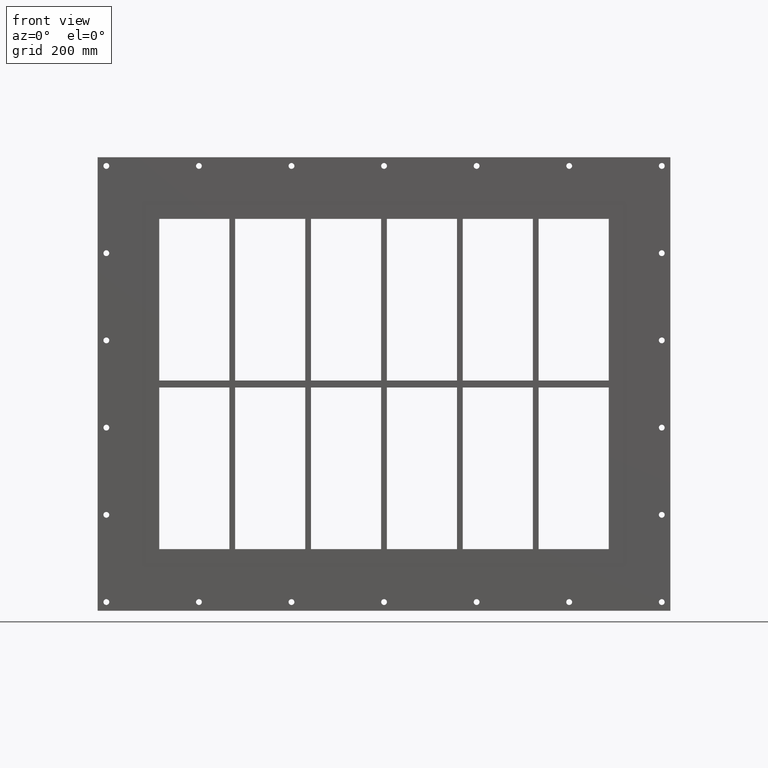
[diagram: clean part render]
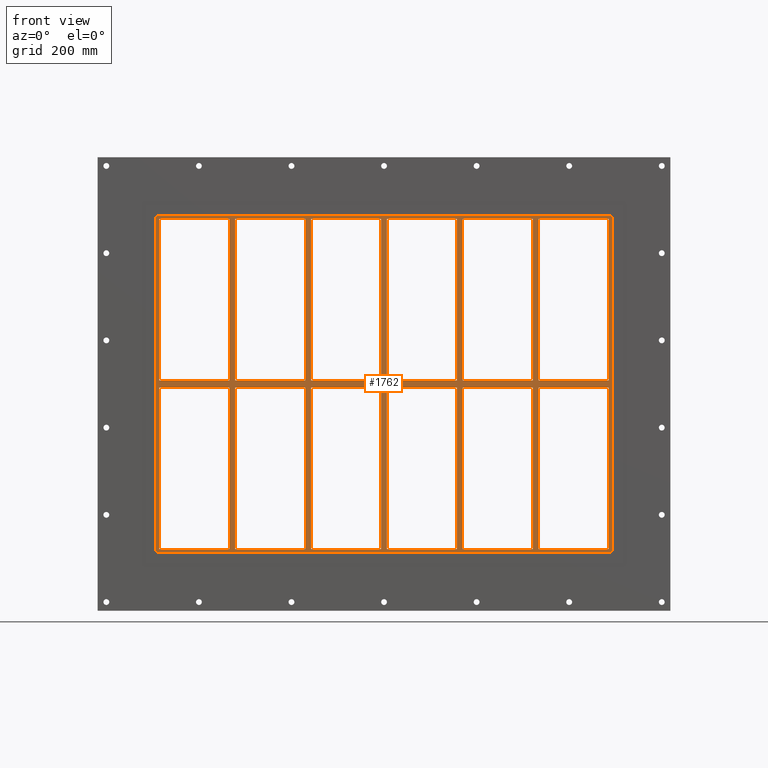
[diagram: same view with one face highlighted and labeled with its STEP entity id]
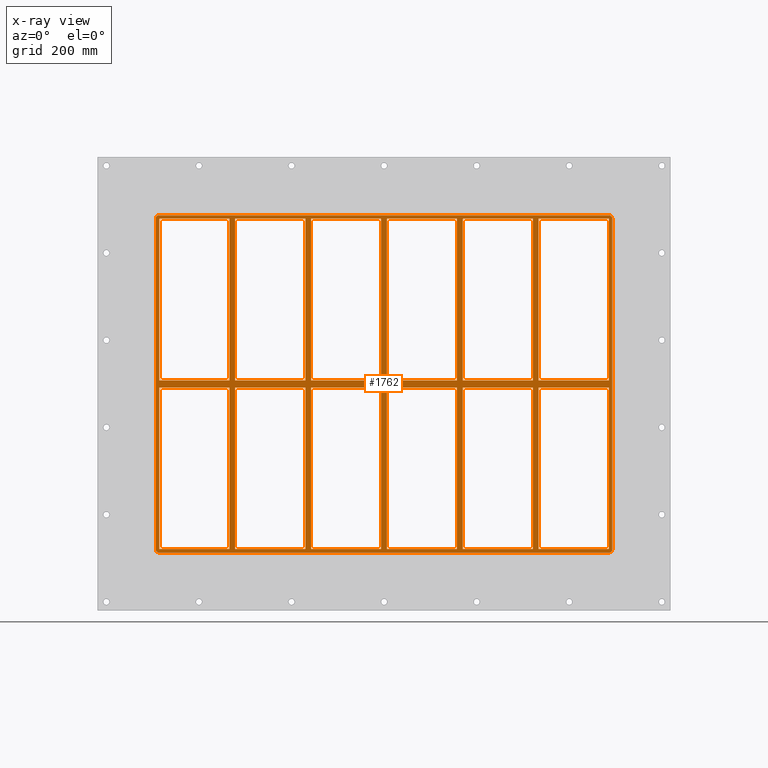
[diagram: x-ray of the same camera — body ghosted, the highlighted face saturated]
A machine part, front view. The second image highlights one B-rep face of the part: STEP entity #1762.
The next image is the same camera in x-ray: the body ghosted, the highlighted face saturated — about 0% of this face is hidden behind the body in this view.
In plain terms, the highlighted planar face has unit normal (0, 1, 0).
Its self-contained STEP definition (entity closure, byte-faithful):
#689=CARTESIAN_POINT('',(255.99999999999866,-3.0,5.999999999999943));
#690=VERTEX_POINT('',#689);
#699=CARTESIAN_POINT('',(255.99999999999864,-3.0,284.00000000000006));
#700=VERTEX_POINT('',#699);
#701=CARTESIAN_POINT('',(255.99999999999866,-3.0,5.999999999999943));
#702=DIRECTION('',(0.0,0.0,1.0));
#703=VECTOR('',#702,278.00000000000011);
#704=LINE('',#701,#703);
#705=EDGE_CURVE('',#690,#700,#704,.T.);
#731=CARTESIAN_POINT('',(255.99999999999866,-3.0,-6.000000000009358));
#732=VERTEX_POINT('',#731);
#747=CARTESIAN_POINT('',(255.99999999999869,-3.0,-284.00000000000006));
#748=VERTEX_POINT('',#747);
#755=CARTESIAN_POINT('',(255.99999999999869,-3.0,-284.00000000000006));
#756=DIRECTION('',(0.0,0.0,1.0));
#757=VECTOR('',#756,277.99999999999068);
#758=LINE('',#755,#757);
#759=EDGE_CURVE('',#748,#732,#758,.T.);
#771=CARTESIAN_POINT('',(265.99999999999642,-3.0,5.999999999999943));
#772=VERTEX_POINT('',#771);
#787=CARTESIAN_POINT('',(265.99999999999642,-3.0,284.00000000000006));
#788=VERTEX_POINT('',#787);
#795=CARTESIAN_POINT('',(265.99999999999642,-3.0,284.00000000000006));
#796=DIRECTION('',(0.0,0.0,-1.0));
#797=VECTOR('',#796,278.00000000000011);
#798=LINE('',#795,#797);
#799=EDGE_CURVE('',#788,#772,#798,.T.);
#809=CARTESIAN_POINT('',(265.99999999999642,-3.0,-6.000000000009358));
#810=VERTEX_POINT('',#809);
#819=CARTESIAN_POINT('',(265.99999999999642,-3.0,-283.99999999998431));
#820=VERTEX_POINT('',#819);
#821=CARTESIAN_POINT('',(265.99999999999642,-3.0,-6.000000000009379));
#822=DIRECTION('',(0.0,0.0,-1.0));
#823=VECTOR('',#822,277.99999999997488);
#824=LINE('',#821,#823);
#825=EDGE_CURVE('',#810,#820,#824,.T.);
#849=CARTESIAN_POINT('',(125.49999999999866,-3.0,5.999999999999943));
#850=VERTEX_POINT('',#849);
#859=CARTESIAN_POINT('',(125.49999999999862,-3.0,284.00000000000006));
#860=VERTEX_POINT('',#859);
#861=CARTESIAN_POINT('',(125.49999999999865,-3.0,5.999999999999943));
#862=DIRECTION('',(0.0,0.0,1.0));
#863=VECTOR('',#862,278.00000000000011);
#864=LINE('',#861,#863);
#865=EDGE_CURVE('',#850,#860,#864,.T.);
#891=CARTESIAN_POINT('',(125.49999999999866,-3.0,-6.000000000009429));
#892=VERTEX_POINT('',#891);
#907=CARTESIAN_POINT('',(125.49999999999869,-3.0,-284.00000000000006));
#908=VERTEX_POINT('',#907);
#915=CARTESIAN_POINT('',(125.49999999999869,-3.0,-284.00000000000006));
#916=DIRECTION('',(0.0,0.0,1.0));
#917=VECTOR('',#916,277.99999999999062);
#918=LINE('',#915,#917);
#919=EDGE_CURVE('',#908,#892,#918,.T.);
#931=CARTESIAN_POINT('',(135.49999999999642,-3.0,5.999999999999943));
#932=VERTEX_POINT('',#931);
#947=CARTESIAN_POINT('',(135.49999999999642,-3.0,284.00000000000006));
#948=VERTEX_POINT('',#947);
#955=CARTESIAN_POINT('',(135.49999999999642,-3.0,284.00000000000006));
#956=DIRECTION('',(0.0,0.0,-1.0));
#957=VECTOR('',#956,278.00000000000011);
#958=LINE('',#955,#957);
#959=EDGE_CURVE('',#948,#932,#958,.T.);
#969=CARTESIAN_POINT('',(135.49999999999642,-3.0,-6.000000000009429));
#970=VERTEX_POINT('',#969);
#979=CARTESIAN_POINT('',(135.49999999999642,-3.0,-283.99999999998431));
#980=VERTEX_POINT('',#979);
#981=CARTESIAN_POINT('',(135.49999999999642,-3.0,-6.000000000009436));
#982=DIRECTION('',(0.0,0.0,-1.0));
#983=VECTOR('',#982,277.99999999997482);
#984=LINE('',#981,#983);
#985=EDGE_CURVE('',#970,#980,#984,.T.);
#1009=CARTESIAN_POINT('',(-5.000000000001386,-3.0,5.999999999999943));
#1010=VERTEX_POINT('',#1009);
#1019=CARTESIAN_POINT('',(-5.000000000001421,-3.0,284.00000000000006));
#1020=VERTEX_POINT('',#1019);
#1021=CARTESIAN_POINT('',(-5.000000000001386,-3.0,5.999999999999943));
#1022=DIRECTION('',(0.0,0.0,1.0));
#1023=VECTOR('',#1022,278.00000000000011);
#1024=LINE('',#1021,#1023);
#1025=EDGE_CURVE('',#1010,#1020,#1024,.T.);
#1051=CARTESIAN_POINT('',(-5.000000000001385,-3.0,-6.000000000009464));
#1052=VERTEX_POINT('',#1051);
#1067=CARTESIAN_POINT('',(-5.00000000000135,-3.0,-284.00000000000006));
#1068=VERTEX_POINT('',#1067);
#1075=CARTESIAN_POINT('',(-5.00000000000135,-3.0,-284.00000000000006));
#1076=DIRECTION('',(0.0,0.0,1.0));
#1077=VECTOR('',#1076,277.99999999999056);
#1078=LINE('',#1075,#1077);
#1079=EDGE_CURVE('',#1068,#1052,#1078,.T.);
#1091=CARTESIAN_POINT('',(4.999999999996376,-3.0,5.999999999999943));
#1092=VERTEX_POINT('',#1091);
#1107=CARTESIAN_POINT('',(4.999999999996376,-3.0,284.00000000000006));
#1108=VERTEX_POINT('',#1107);
#1115=CARTESIAN_POINT('',(4.999999999996376,-3.0,284.00000000000006));
#1116=DIRECTION('',(0.0,0.0,-1.0));
#1117=VECTOR('',#1116,278.00000000000011);
#1118=LINE('',#1115,#1117);
#1119=EDGE_CURVE('',#1108,#1092,#1118,.T.);
#1129=CARTESIAN_POINT('',(4.999999999996376,-3.0,-6.000000000009464));
#1130=VERTEX_POINT('',#1129);
#1139=CARTESIAN_POINT('',(4.999999999996376,-3.0,-283.99999999998431));
#1140=VERTEX_POINT('',#1139);
#1141=CARTESIAN_POINT('',(4.999999999996376,-3.0,-6.000000000009493));
#1142=DIRECTION('',(0.0,0.0,-1.0));
#1143=VECTOR('',#1142,277.99999999997476);
#1144=LINE('',#1141,#1143);
#1145=EDGE_CURVE('',#1130,#1140,#1144,.T.);
#1169=CARTESIAN_POINT('',(-135.50000000000139,-3.0,5.999999999999943));
#1170=VERTEX_POINT('',#1169);
#1179=CARTESIAN_POINT('',(-135.50000000000142,-3.0,284.00000000000006));
#1180=VERTEX_POINT('',#1179);
#1181=CARTESIAN_POINT('',(-135.50000000000139,-3.0,5.999999999999943));
#1182=DIRECTION('',(0.0,0.0,1.0));
#1183=VECTOR('',#1182,278.00000000000011);
#1184=LINE('',#1181,#1183);
#1185=EDGE_CURVE('',#1170,#1180,#1184,.T.);
#1211=CARTESIAN_POINT('',(-135.50000000000139,-3.0,-6.0000000000095));
#1212=VERTEX_POINT('',#1211);
#1227=CARTESIAN_POINT('',(-135.50000000000136,-3.0,-284.00000000000006));
#1228=VERTEX_POINT('',#1227);
#1235=CARTESIAN_POINT('',(-135.50000000000136,-3.0,-284.00000000000006));
#1236=DIRECTION('',(0.0,0.0,1.0));
#1237=VECTOR('',#1236,277.99999999999056);
#1238=LINE('',#1235,#1237);
#1239=EDGE_CURVE('',#1228,#1212,#1238,.T.);
#1251=CARTESIAN_POINT('',(-125.50000000000364,-3.0,5.999999999999943));
#1252=VERTEX_POINT('',#1251);
#1267=CARTESIAN_POINT('',(-125.50000000000364,-3.0,284.00000000000006));
#1268=VERTEX_POINT('',#1267);
#1275=CARTESIAN_POINT('',(-125.50000000000364,-3.0,284.00000000000006));
#1276=DIRECTION('',(0.0,0.0,-1.0));
#1277=VECTOR('',#1276,278.00000000000011);
#1278=LINE('',#1275,#1277);
#1279=EDGE_CURVE('',#1268,#1252,#1278,.T.);
#1289=CARTESIAN_POINT('',(-125.50000000000364,-3.0,-6.0000000000095));
#1290=VERTEX_POINT('',#1289);
#1299=CARTESIAN_POINT('',(-125.50000000000364,-3.0,-283.99999999998431));
#1300=VERTEX_POINT('',#1299);
#1301=CARTESIAN_POINT('',(-125.50000000000364,-3.0,-6.000000000009493));
#1302=DIRECTION('',(0.0,0.0,-1.0));
#1303=VECTOR('',#1302,277.99999999997476);
#1304=LINE('',#1301,#1303);
#1305=EDGE_CURVE('',#1290,#1300,#1304,.T.);
#1338=CARTESIAN_POINT('',(-256.00000000000364,-3.0,-283.99999999998431));
#1339=VERTEX_POINT('',#1338);
#1346=CARTESIAN_POINT('',(-135.50000000000136,-3.0,-284.00000000000006));
#1347=DIRECTION('',(-1.0,0.0,0.0));
#1348=VECTOR('',#1347,120.50000000000222);
#1349=LINE('',#1346,#1348);
#1350=EDGE_CURVE('',#1228,#1339,#1349,.T.);
#1368=CARTESIAN_POINT('',(-5.000000000001364,-3.0,-284.00000000000006));
#1369=DIRECTION('',(-1.0,0.0,0.0));
#1370=VECTOR('',#1369,120.50000000000227);
#1371=LINE('',#1368,#1370);
#1372=EDGE_CURVE('',#1068,#1300,#1371,.T.);
#1390=CARTESIAN_POINT('',(125.49999999999869,-3.0,-284.00000000000006));
#1391=DIRECTION('',(-1.0,0.0,0.0));
#1392=VECTOR('',#1391,120.50000000000233);
#1393=LINE('',#1390,#1392);
#1394=EDGE_CURVE('',#908,#1140,#1393,.T.);
#1412=CARTESIAN_POINT('',(255.99999999999869,-3.0,-284.00000000000006));
#1413=DIRECTION('',(-1.0,0.0,0.0));
#1414=VECTOR('',#1413,120.50000000000227);
#1415=LINE('',#1412,#1414);
#1416=EDGE_CURVE('',#748,#980,#1415,.T.);
#1427=CARTESIAN_POINT('',(386.50000000000023,-3.0,-284.00000000000006));
#1428=VERTEX_POINT('',#1427);
#1429=CARTESIAN_POINT('',(386.50000000000023,-3.0,-284.00000000000006));
#1430=DIRECTION('',(-1.0,0.0,0.0));
#1431=VECTOR('',#1430,120.50000000000381);
#1432=LINE('',#1429,#1431);
#1433=EDGE_CURVE('',#1428,#820,#1432,.T.);
#1452=CARTESIAN_POINT('',(-5.791053E-014,-3.0,0.0));
#1453=DIRECTION('',(0.0,1.0,0.0));
#1454=DIRECTION('',(0.0,0.0,1.0));
#1455=AXIS2_PLACEMENT_3D('',#1452,#1453,#1454);
#1456=PLANE('',#1455);
#1457=CARTESIAN_POINT('',(392.5,-3.0,-284.0));
#1458=VERTEX_POINT('',#1457);
#1459=CARTESIAN_POINT('',(386.50000000000006,-3.0,-290.00000000000006));
#1460=VERTEX_POINT('',#1459);
#1461=CARTESIAN_POINT('',(386.50000000000006,-3.0,-284.0));
#1462=DIRECTION('',(0.0,1.0,0.0));
#1463=DIRECTION('',(0.707106781186543,0.0,-0.707106781186552));
#1464=AXIS2_PLACEMENT_3D('',#1461,#1462,#1463);
#1465=CIRCLE('',#1464,6.000000000000001);
#1466=EDGE_CURVE('',#1458,#1460,#1465,.T.);
#1467=ORIENTED_EDGE('',*,*,#1466,.F.);
#1468=CARTESIAN_POINT('',(392.5,-3.0,284.0));
#1469=VERTEX_POINT('',#1468);
#1470=CARTESIAN_POINT('',(392.5,-3.0,-283.99999999999994));
#1471=DIRECTION('',(0.0,0.0,1.0));
#1472=VECTOR('',#1471,568.0);
#1473=LINE('',#1470,#1472);
#1474=EDGE_CURVE('',#1458,#1469,#1473,.T.);
#1475=ORIENTED_EDGE('',*,*,#1474,.T.);
#1476=CARTESIAN_POINT('',(386.49999999999989,-3.0,290.00000000000006));
#1477=VERTEX_POINT('',#1476);
#1478=CARTESIAN_POINT('',(386.49999999999989,-3.0,284.0));
#1479=DIRECTION('',(0.0,1.0,0.0));
#1480=DIRECTION('',(0.707106781186552,0.0,0.707106781186543));
#1481=AXIS2_PLACEMENT_3D('',#1478,#1479,#1480);
#1482=CIRCLE('',#1481,6.0);
#1483=EDGE_CURVE('',#1477,#1469,#1482,.T.);
#1484=ORIENTED_EDGE('',*,*,#1483,.F.);
#1485=CARTESIAN_POINT('',(-386.50000000000023,-3.0,290.00000000000006));
#1486=VERTEX_POINT('',#1485);
#1487=CARTESIAN_POINT('',(386.49999999999989,-3.0,290.00000000000006));
#1488=DIRECTION('',(-1.0,0.0,0.0));
#1489=VECTOR('',#1488,773.0);
#1490=LINE('',#1487,#1489);
#1491=EDGE_CURVE('',#1477,#1486,#1490,.T.);
#1492=ORIENTED_EDGE('',*,*,#1491,.T.);
#1493=CARTESIAN_POINT('',(-392.50000000000011,-3.0,284.0));
#1494=VERTEX_POINT('',#1493);
#1495=CARTESIAN_POINT('',(-386.50000000000023,-3.0,284.0));
#1496=DIRECTION('',(0.0,1.0,0.0));
#1497=DIRECTION('',(-0.707106781186543,0.0,0.707106781186552));
#1498=AXIS2_PLACEMENT_3D('',#1495,#1496,#1497);
#1499=CIRCLE('',#1498,6.000000000000001);
#1500=EDGE_CURVE('',#1494,#1486,#1499,.T.);
#1501=ORIENTED_EDGE('',*,*,#1500,.F.);
#1502=CARTESIAN_POINT('',(-392.50000000000011,-3.0,-284.0));
#1503=VERTEX_POINT('',#1502);
#1504=CARTESIAN_POINT('',(-392.50000000000011,-3.0,283.99999999999994));
#1505=DIRECTION('',(0.0,0.0,-1.0));
#1506=VECTOR('',#1505,568.0);
#1507=LINE('',#1504,#1506);
#1508=EDGE_CURVE('',#1494,#1503,#1507,.T.);
#1509=ORIENTED_EDGE('',*,*,#1508,.T.);
#1510=CARTESIAN_POINT('',(-386.50000000000006,-3.0,-290.00000000000006));
#1511=VERTEX_POINT('',#1510);
#1512=CARTESIAN_POINT('',(-386.50000000000006,-3.0,-284.0));
#1513=DIRECTION('',(0.0,1.0,0.0));
#1514=DIRECTION('',(-0.707106781186552,0.0,-0.707106781186543));
#1515=AXIS2_PLACEMENT_3D('',#1512,#1513,#1514);
#1516=CIRCLE('',#1515,6.0);
#1517=EDGE_CURVE('',#1511,#1503,#1516,.T.);
#1518=ORIENTED_EDGE('',*,*,#1517,.F.);
#1519=CARTESIAN_POINT('',(-386.5,-3.0,-290.00000000000006));
#1520=DIRECTION('',(1.0,0.0,0.0));
#1521=VECTOR('',#1520,773.0);
#1522=LINE('',#1519,#1521);
#1523=EDGE_CURVE('',#1511,#1460,#1522,.T.);
#1524=ORIENTED_EDGE('',*,*,#1523,.T.);
#1525=EDGE_LOOP('',(#1467,#1475,#1484,#1492,#1501,#1509,#1518,#1524));
#1526=FACE_OUTER_BOUND('',#1525,.T.);
#1527=ORIENTED_EDGE('',*,*,#1416,.T.);
#1528=ORIENTED_EDGE('',*,*,#985,.F.);
#1529=CARTESIAN_POINT('',(255.99999999999866,-3.0,-6.00000000000937));
#1530=DIRECTION('',(-1.0,0.0,0.0));
#1531=VECTOR('',#1530,120.50000000000225);
#1532=LINE('',#1529,#1531);
#1533=EDGE_CURVE('',#732,#970,#1532,.T.);
#1534=ORIENTED_EDGE('',*,*,#1533,.F.);
#1535=ORIENTED_EDGE('',*,*,#759,.F.);
#1536=EDGE_LOOP('',(#1527,#1528,#1534,#1535));
#1537=FACE_BOUND('',#1536,.T.);
#1538=CARTESIAN_POINT('',(135.49999999999636,-3.0,5.999999999999943));
#1539=DIRECTION('',(1.0,0.0,0.0));
#1540=VECTOR('',#1539,120.50000000000227);
#1541=LINE('',#1538,#1540);
#1542=EDGE_CURVE('',#932,#690,#1541,.T.);
#1543=ORIENTED_EDGE('',*,*,#1542,.F.);
#1544=ORIENTED_EDGE('',*,*,#959,.F.);
#1545=CARTESIAN_POINT('',(135.49999999999642,-3.0,284.0));
#1546=DIRECTION('',(1.0,0.0,0.0));
#1547=VECTOR('',#1546,120.50000000000222);
#1548=LINE('',#1545,#1547);
#1549=EDGE_CURVE('',#948,#700,#1548,.T.);
#1550=ORIENTED_EDGE('',*,*,#1549,.T.);
#1551=ORIENTED_EDGE('',*,*,#705,.F.);
#1552=EDGE_LOOP('',(#1543,#1544,#1550,#1551));
#1553=FACE_BOUND('',#1552,.T.);
#1554=ORIENTED_EDGE('',*,*,#1394,.T.);
#1555=ORIENTED_EDGE('',*,*,#1145,.F.);
#1556=CARTESIAN_POINT('',(125.49999999999864,-3.0,-6.000000000009418));
#1557=DIRECTION('',(-1.0,0.0,0.0));
#1558=VECTOR('',#1557,120.50000000000227);
#1559=LINE('',#1556,#1558);
#1560=EDGE_CURVE('',#892,#1130,#1559,.T.);
#1561=ORIENTED_EDGE('',*,*,#1560,.F.);
#1562=ORIENTED_EDGE('',*,*,#919,.F.);
#1563=EDGE_LOOP('',(#1554,#1555,#1561,#1562));
#1564=FACE_BOUND('',#1563,.T.);
#1565=CARTESIAN_POINT('',(4.999999999996362,-3.0,5.999999999999943));
#1566=DIRECTION('',(1.0,0.0,0.0));
#1567=VECTOR('',#1566,120.50000000000233);
#1568=LINE('',#1565,#1567);
#1569=EDGE_CURVE('',#1092,#850,#1568,.T.);
#1570=ORIENTED_EDGE('',*,*,#1569,.F.);
#1571=ORIENTED_EDGE('',*,*,#1119,.F.);
#1572=CARTESIAN_POINT('',(4.99999999999639,-3.0,284.0));
#1573=DIRECTION('',(1.0,0.0,0.0));
#1574=VECTOR('',#1573,120.50000000000225);
#1575=LINE('',#1572,#1574);
#1576=EDGE_CURVE('',#1108,#860,#1575,.T.);
#1577=ORIENTED_EDGE('',*,*,#1576,.T.);
#1578=ORIENTED_EDGE('',*,*,#865,.F.);
#1579=EDGE_LOOP('',(#1570,#1571,#1577,#1578));
#1580=FACE_BOUND('',#1579,.T.);
#1581=ORIENTED_EDGE('',*,*,#1372,.T.);
#1582=ORIENTED_EDGE('',*,*,#1305,.F.);
#1583=CARTESIAN_POINT('',(-5.000000000001364,-3.0,-6.000000000009466));
#1584=DIRECTION('',(-1.0,0.0,0.0));
#1585=VECTOR('',#1584,120.50000000000227);
#1586=LINE('',#1583,#1585);
#1587=EDGE_CURVE('',#1052,#1290,#1586,.T.);
#1588=ORIENTED_EDGE('',*,*,#1587,.F.);
#1589=ORIENTED_EDGE('',*,*,#1079,.F.);
#1590=EDGE_LOOP('',(#1581,#1582,#1588,#1589));
#1591=FACE_BOUND('',#1590,.T.);
#1592=CARTESIAN_POINT('',(-125.50000000000364,-3.0,5.999999999999943));
#1593=DIRECTION('',(1.0,0.0,0.0));
#1594=VECTOR('',#1593,120.50000000000222);
#1595=LINE('',#1592,#1594);
#1596=EDGE_CURVE('',#1252,#1010,#1595,.T.);
#1597=ORIENTED_EDGE('',*,*,#1596,.F.);
#1598=ORIENTED_EDGE('',*,*,#1279,.F.);
#1599=CARTESIAN_POINT('',(-125.50000000000362,-3.0,284.0));
#1600=DIRECTION('',(1.0,0.0,0.0));
#1601=VECTOR('',#1600,120.5000000000022);
#1602=LINE('',#1599,#1601);
#1603=EDGE_CURVE('',#1268,#1020,#1602,.T.);
#1604=ORIENTED_EDGE('',*,*,#1603,.T.);
#1605=ORIENTED_EDGE('',*,*,#1025,.F.);
#1606=EDGE_LOOP('',(#1597,#1598,#1604,#1605));
#1607=FACE_BOUND('',#1606,.T.);
#1608=ORIENTED_EDGE('',*,*,#1350,.T.);
#1609=CARTESIAN_POINT('',(-256.00000000000364,-3.0,-6.000000000009559));
#1610=VERTEX_POINT('',#1609);
#1611=CARTESIAN_POINT('',(-256.00000000000364,-3.0,-6.00000000000955));
#1612=DIRECTION('',(0.0,0.0,-1.0));
#1613=VECTOR('',#1612,277.9999999999747);
#1614=LINE('',#1611,#1613);
#1615=EDGE_CURVE('',#1610,#1339,#1614,.T.);
#1616=ORIENTED_EDGE('',*,*,#1615,.F.);
#1617=CARTESIAN_POINT('',(-135.50000000000136,-3.0,-6.000000000009514));
#1618=DIRECTION('',(-1.0,0.0,0.0));
#1619=VECTOR('',#1618,120.50000000000227);
#1620=LINE('',#1617,#1619);
#1621=EDGE_CURVE('',#1212,#1610,#1620,.T.);
#1622=ORIENTED_EDGE('',*,*,#1621,.F.);
#1623=ORIENTED_EDGE('',*,*,#1239,.F.);
#1624=EDGE_LOOP('',(#1608,#1616,#1622,#1623));
#1625=FACE_BOUND('',#1624,.T.);
#1626=CARTESIAN_POINT('',(-256.00000000000364,-3.0,5.999999999999943));
#1627=VERTEX_POINT('',#1626);
#1628=CARTESIAN_POINT('',(-256.00000000000364,-3.0,5.999999999999943));
#1629=DIRECTION('',(1.0,0.0,0.0));
#1630=VECTOR('',#1629,120.50000000000225);
#1631=LINE('',#1628,#1630);
#1632=EDGE_CURVE('',#1627,#1170,#1631,.T.);
#1633=ORIENTED_EDGE('',*,*,#1632,.F.);
#1634=CARTESIAN_POINT('',(-256.00000000000364,-3.0,284.00000000000006));
#1635=VERTEX_POINT('',#1634);
#1636=CARTESIAN_POINT('',(-256.00000000000364,-3.0,284.00000000000006));
#1637=DIRECTION('',(0.0,0.0,-1.0));
#1638=VECTOR('',#1637,278.00000000000011);
#1639=LINE('',#1636,#1638);
#1640=EDGE_CURVE('',#1635,#1627,#1639,.T.);
#1641=ORIENTED_EDGE('',*,*,#1640,.F.);
#1642=CARTESIAN_POINT('',(-256.00000000000364,-3.0,284.0));
#1643=DIRECTION('',(1.0,0.0,0.0));
#1644=VECTOR('',#1643,120.50000000000222);
#1645=LINE('',#1642,#1644);
#1646=EDGE_CURVE('',#1635,#1180,#1645,.T.);
#1647=ORIENTED_EDGE('',*,*,#1646,.T.);
#1648=ORIENTED_EDGE('',*,*,#1185,.F.);
#1649=EDGE_LOOP('',(#1633,#1641,#1647,#1648));
#1650=FACE_BOUND('',#1649,.T.);
#1651=ORIENTED_EDGE('',*,*,#799,.F.);
#1652=CARTESIAN_POINT('',(386.50000000000023,-3.0,284.00000000000006));
#1653=VERTEX_POINT('',#1652);
#1654=CARTESIAN_POINT('',(265.99999999999642,-3.0,284.0));
#1655=DIRECTION('',(1.0,0.0,0.0));
#1656=VECTOR('',#1655,120.50000000000375);
#1657=LINE('',#1654,#1656);
#1658=EDGE_CURVE('',#788,#1653,#1657,.T.);
#1659=ORIENTED_EDGE('',*,*,#1658,.T.);
#1660=CARTESIAN_POINT('',(386.50000000000011,-3.0,5.999999999999943));
#1661=VERTEX_POINT('',#1660);
#1662=CARTESIAN_POINT('',(386.50000000000023,-3.0,284.00000000000006));
#1663=DIRECTION('',(0.0,0.0,-1.0));
#1664=VECTOR('',#1663,278.00000000000011);
#1665=LINE('',#1662,#1664);
#1666=EDGE_CURVE('',#1653,#1661,#1665,.T.);
#1667=ORIENTED_EDGE('',*,*,#1666,.T.);
#1668=CARTESIAN_POINT('',(265.99999999999636,-3.0,5.999999999999943));
#1669=DIRECTION('',(1.0,0.0,0.0));
#1670=VECTOR('',#1669,120.50000000000364);
#1671=LINE('',#1668,#1670);
#1672=EDGE_CURVE('',#772,#1661,#1671,.T.);
#1673=ORIENTED_EDGE('',*,*,#1672,.F.);
#1674=EDGE_LOOP('',(#1651,#1659,#1667,#1673));
#1675=FACE_BOUND('',#1674,.T.);
#1676=ORIENTED_EDGE('',*,*,#825,.F.);
#1677=CARTESIAN_POINT('',(386.49999999999636,-3.0,-6.000000000009322));
#1678=VERTEX_POINT('',#1677);
#1679=CARTESIAN_POINT('',(386.49999999999636,-3.0,-6.000000000009322));
#1680=DIRECTION('',(-1.0,0.0,0.0));
#1681=VECTOR('',#1680,120.49999999999994);
#1682=LINE('',#1679,#1681);
#1683=EDGE_CURVE('',#1678,#810,#1682,.T.);
#1684=ORIENTED_EDGE('',*,*,#1683,.F.);
#1685=CARTESIAN_POINT('',(386.50000000000023,-3.0,-6.000000000009322));
#1686=DIRECTION('',(0.0,0.0,-1.0));
#1687=VECTOR('',#1686,277.99999999999079);
#1688=LINE('',#1685,#1687);
#1689=EDGE_CURVE('',#1678,#1428,#1688,.T.);
#1690=ORIENTED_EDGE('',*,*,#1689,.T.);
#1691=ORIENTED_EDGE('',*,*,#1433,.T.);
#1692=EDGE_LOOP('',(#1676,#1684,#1690,#1691));
#1693=FACE_BOUND('',#1692,.T.);
#1694=CARTESIAN_POINT('',(-386.49999999999977,-3.0,5.999999999999943));
#1695=VERTEX_POINT('',#1694);
#1696=CARTESIAN_POINT('',(-386.50000000000006,-3.0,284.00000000000006));
#1697=VERTEX_POINT('',#1696);
#1698=CARTESIAN_POINT('',(-386.50000000000006,-3.0,5.999999999999943));
#1699=DIRECTION('',(0.0,0.0,1.0));
#1700=VECTOR('',#1699,278.00000000000017);
#1701=LINE('',#1698,#1700);
#1702=EDGE_CURVE('',#1695,#1697,#1701,.T.);
#1703=ORIENTED_EDGE('',*,*,#1702,.T.);
#1704=CARTESIAN_POINT('',(-266.00000000000142,-3.0,284.00000000000006));
#1705=VERTEX_POINT('',#1704);
#1706=CARTESIAN_POINT('',(-386.50000000000006,-3.0,284.0));
#1707=DIRECTION('',(1.0,0.0,0.0));
#1708=VECTOR('',#1707,120.49999999999864);
#1709=LINE('',#1706,#1708);
#1710=EDGE_CURVE('',#1697,#1705,#1709,.T.);
#1711=ORIENTED_EDGE('',*,*,#1710,.T.);
#1712=CARTESIAN_POINT('',(-266.00000000000142,-3.0,5.999999999999943));
#1713=VERTEX_POINT('',#1712);
#1714=CARTESIAN_POINT('',(-266.00000000000142,-3.0,5.999999999999943));
#1715=DIRECTION('',(0.0,0.0,1.0));
#1716=VECTOR('',#1715,278.00000000000011);
#1717=LINE('',#1714,#1716);
#1718=EDGE_CURVE('',#1713,#1705,#1717,.T.);
#1719=ORIENTED_EDGE('',*,*,#1718,.F.);
#1720=CARTESIAN_POINT('',(-386.49999999999977,-3.0,5.999999999999943));
#1721=DIRECTION('',(1.0,0.0,0.0));
#1722=VECTOR('',#1721,120.49999999999841);
#1723=LINE('',#1720,#1722);
#1724=EDGE_CURVE('',#1695,#1713,#1723,.T.);
#1725=ORIENTED_EDGE('',*,*,#1724,.F.);
#1726=EDGE_LOOP('',(#1703,#1711,#1719,#1725));
#1727=FACE_BOUND('',#1726,.T.);
#1728=CARTESIAN_POINT('',(-266.00000000000136,-3.0,-6.000000000009562));
#1729=VERTEX_POINT('',#1728);
#1730=CARTESIAN_POINT('',(-386.49999999999977,-3.0,-6.000000000009607));
#1731=VERTEX_POINT('',#1730);
#1732=CARTESIAN_POINT('',(-266.00000000000136,-3.0,-6.000000000009562));
#1733=DIRECTION('',(-1.0,0.0,0.0));
#1734=VECTOR('',#1733,120.49999999999841);
#1735=LINE('',#1732,#1734);
#1736=EDGE_CURVE('',#1729,#1731,#1735,.T.);
#1737=ORIENTED_EDGE('',*,*,#1736,.F.);
#1738=CARTESIAN_POINT('',(-266.00000000000136,-3.0,-284.00000000000006));
#1739=VERTEX_POINT('',#1738);
#1740=CARTESIAN_POINT('',(-266.00000000000136,-3.0,-284.00000000000006));
#1741=DIRECTION('',(0.0,0.0,1.0));
#1742=VECTOR('',#1741,277.99999999999051);
#1743=LINE('',#1740,#1742);
#1744=EDGE_CURVE('',#1739,#1729,#1743,.T.);
#1745=ORIENTED_EDGE('',*,*,#1744,.F.);
#1746=CARTESIAN_POINT('',(-386.50000000000006,-3.0,-284.00000000000006));
#1747=VERTEX_POINT('',#1746);
#1748=CARTESIAN_POINT('',(-266.00000000000131,-3.0,-284.00000000000006));
#1749=DIRECTION('',(-1.0,0.0,0.0));
#1750=VECTOR('',#1749,120.49999999999875);
#1751=LINE('',#1748,#1750);
#1752=EDGE_CURVE('',#1739,#1747,#1751,.T.);
#1753=ORIENTED_EDGE('',*,*,#1752,.T.);
#1754=CARTESIAN_POINT('',(-386.50000000000006,-3.0,-284.00000000000006));
#1755=DIRECTION('',(0.0,0.0,1.0));
#1756=VECTOR('',#1755,277.99999999999045);
#1757=LINE('',#1754,#1756);
#1758=EDGE_CURVE('',#1747,#1731,#1757,.T.);
#1759=ORIENTED_EDGE('',*,*,#1758,.T.);
#1760=EDGE_LOOP('',(#1737,#1745,#1753,#1759));
#1761=FACE_BOUND('',#1760,.T.);
#1762=ADVANCED_FACE('',(#1526,#1537,#1553,#1564,#1580,#1591,#1607,#1625,#1650,#1675,#1693,#1727,#1761),#1456,.F.);